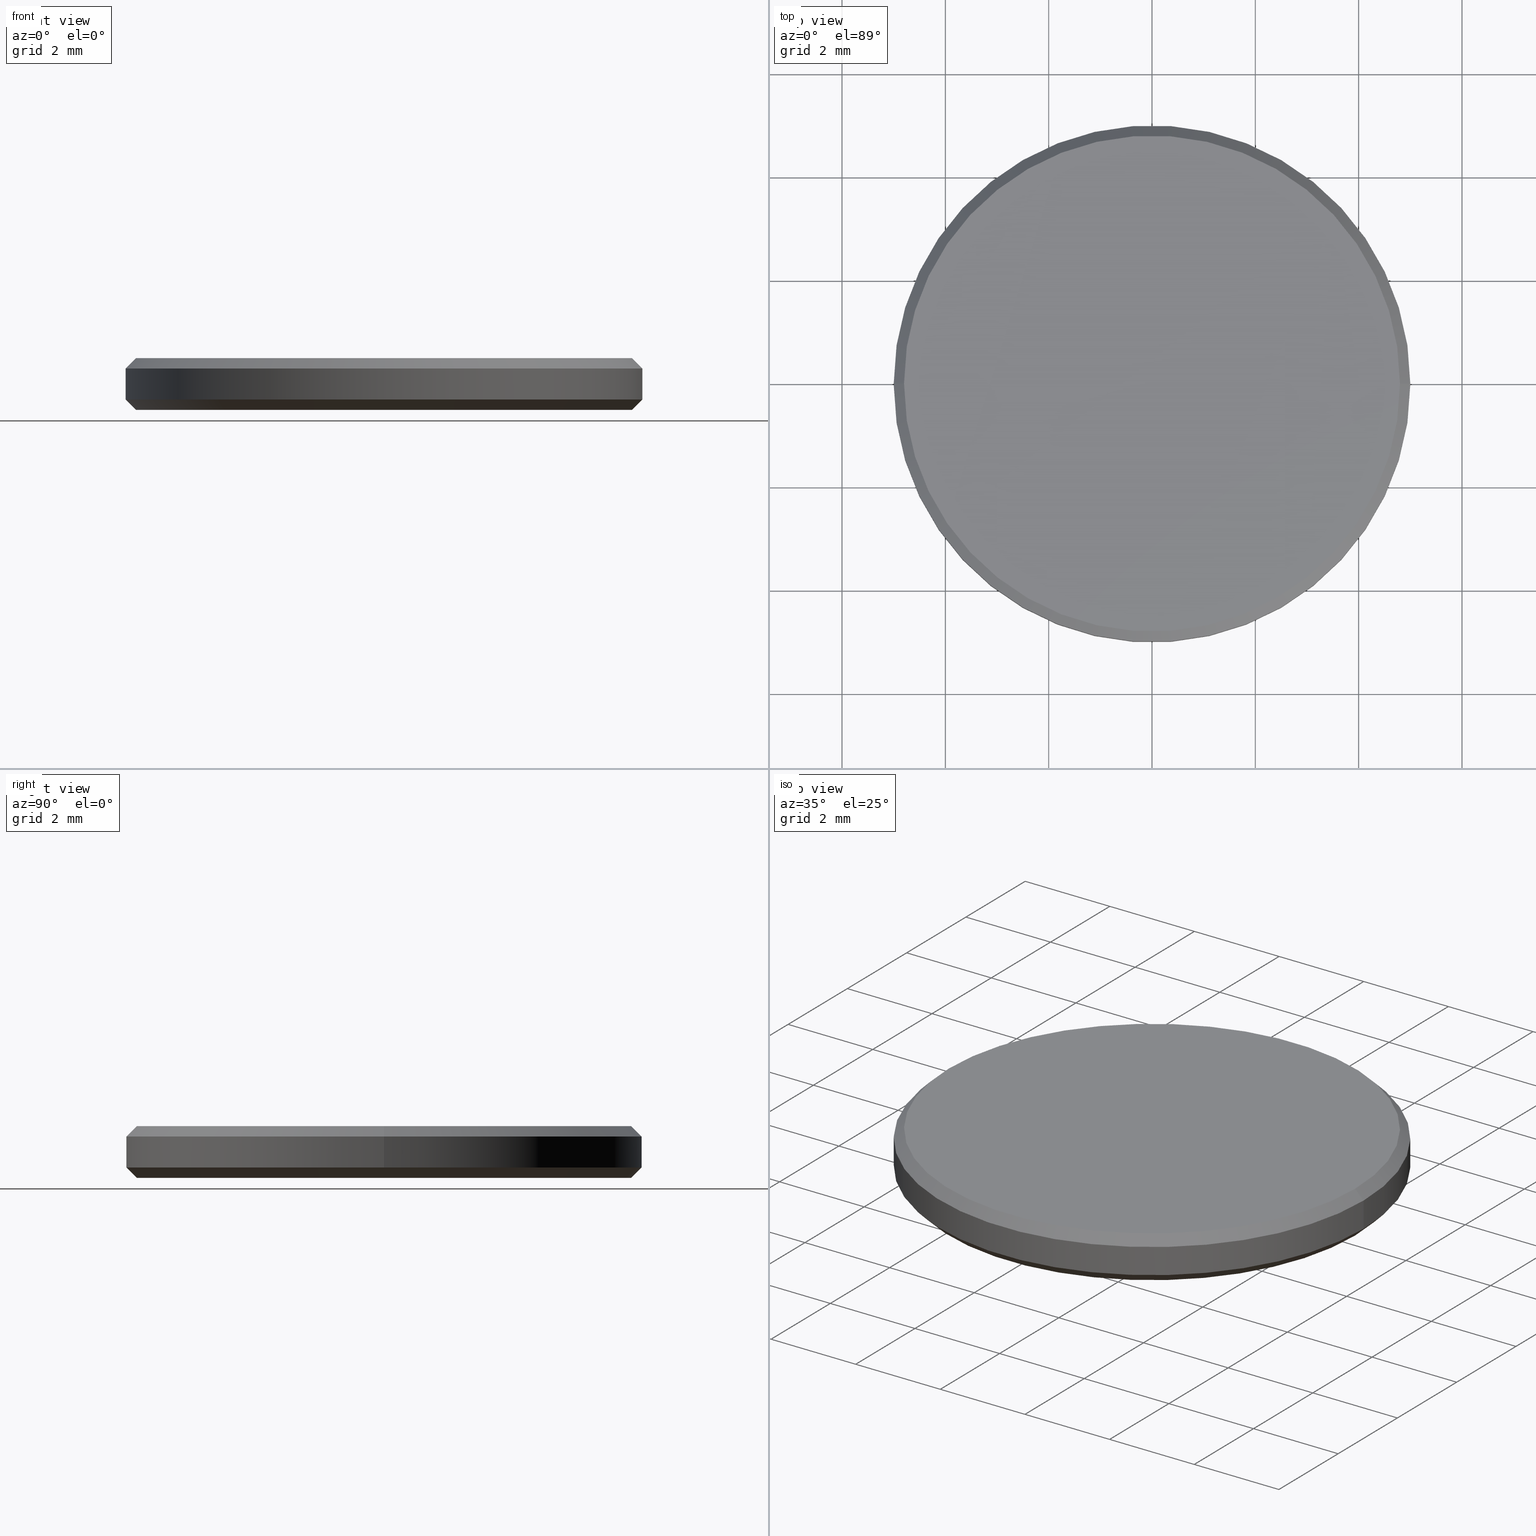
[diagram: canonical four-view strip — front | top / right | iso, engineering-drawing reading convention]
A machine part, canonical four-view strip (front | top / right | iso — engineering-drawing reading convention). The complete STEP part file that produces these views, byte-faithful:
ISO-10303-21;
HEADER;
FILE_DESCRIPTION (( 'STEP AP214' ),
    '1' );
FILE_NAME ('GNIF-070-4280-D10.STEP',
    '2024-07-19T14:41:36',
    ( '' ),
    ( '' ),
    'SwSTEP 2.0',
    'SolidWorks 2022',
    '' );
FILE_SCHEMA (( 'AUTOMOTIVE_DESIGN' ));
ENDSEC;

DATA;
#1 = ORIENTED_EDGE ( 'NONE', *, *, #38, .F. ) ;
#2 = PRODUCT_DEFINITION_FORMATION_WITH_SPECIFIED_SOURCE ( '�κ�', '', #13, .NOT_KNOWN. ) ;
#3 = DIRECTION ( 'NONE',  ( 1.000000000000000000, 0.000000000000000000, 0.000000000000000000 ) ) ;
#4 = AXIS2_PLACEMENT_3D ( 'NONE', #93, #124, #127 ) ;
#5 = PRODUCT_DEFINITION ( 'δ֪', '', #2, #116 ) ;
#6 = DIRECTION ( 'NONE',  ( 0.000000000000000000, 0.000000000000000000, 1.000000000000000000 ) ) ;
#7 = EDGE_LOOP ( 'NONE', ( #107, #101 ) ) ;
#8 = PLANE ( 'NONE',  #207 ) ;
#9 = EDGE_LOOP ( 'NONE', ( #211, #41, #50, #43 ) ) ;
#10 = APPLICATION_PROTOCOL_DEFINITION ( 'draft international standard', 'automotive_design', 1998, #176 ) ;
#11 = VECTOR ( 'NONE', #219, 1000.000000000000000 ) ;
#12 = PRESENTATION_LAYER_ASSIGNMENT (  '', '', ( #49 ) ) ;
#13 = PRODUCT ( 'GNIF-070-4280-D10', 'GNIF-070-4280-D10', '', ( #158 ) ) ;
#14 = ADVANCED_FACE ( 'NONE', ( #15 ), #109, .T. ) ;
#15 = FACE_OUTER_BOUND ( 'NONE', #187, .T. ) ;
#16 = DIRECTION ( 'NONE',  ( -1.000000000000000000, 0.000000000000000000, 0.000000000000000000 ) ) ;
#17 = CONICAL_SURFACE ( 'NONE', #154, 4.800000000000002487, 0.7853981633974461696 ) ;
#18 = CARTESIAN_POINT ( 'NONE',  ( 0.000000000000000000, 0.000000000000000000, 0.1999999999999996503 ) ) ;
#19 = CARTESIAN_POINT ( 'NONE',  ( 4.799999999999999822, 0.000000000000000000, 0.000000000000000000 ) ) ;
#20 = EDGE_CURVE ( 'NONE', #216, #51, #139, .T. ) ;
#21 = CARTESIAN_POINT ( 'NONE',  ( 0.000000000000000000, 0.000000000000000000, 1.000000000000000000 ) ) ;
#22 = CARTESIAN_POINT ( 'NONE',  ( 0.000000000000000000, 0.000000000000000000, 1.000000000000000000 ) ) ;
#23 = SURFACE_STYLE_USAGE ( .BOTH. , #27 ) ;
#24 = COLOUR_RGB ( '',1.000000000000000000, 1.000000000000000000, 1.000000000000000000 ) ;
#25 = AXIS2_PLACEMENT_3D ( 'NONE', #210, #94, #149 ) ;
#26 = ORIENTED_EDGE ( 'NONE', *, *, #61, .T. ) ;
#27 = SURFACE_SIDE_STYLE ('',( #167 ) ) ;
#28 =( LENGTH_UNIT ( ) NAMED_UNIT ( * ) SI_UNIT ( .MILLI., .METRE. ) );
#29 = AXIS2_PLACEMENT_3D ( 'NONE', #145, #95, #220 ) ;
#30 = UNCERTAINTY_MEASURE_WITH_UNIT (LENGTH_MEASURE( 1.000000000000000082E-05 ), #28, 'distance_accuracy_value', 'NONE');
#31 = DIRECTION ( 'NONE',  ( 0.000000000000000000, 0.000000000000000000, 1.000000000000000000 ) ) ;
#32 = DIRECTION ( 'NONE',  ( 1.000000000000000000, 0.000000000000000000, 0.000000000000000000 ) ) ;
#33 = AXIS2_PLACEMENT_3D ( 'NONE', #181, #237, #16 ) ;
#34 = CARTESIAN_POINT ( 'NONE',  ( 0.000000000000000000, 0.000000000000000000, 0.1999999999999996503 ) ) ;
#35 = CONICAL_SURFACE ( 'NONE', #174, 5.000000000000000000, 0.7853981633974503884 ) ;
#36 = ORIENTED_EDGE ( 'NONE', *, *, #47, .T. ) ;
#37 = FACE_OUTER_BOUND ( 'NONE', #141, .T. ) ;
#38 = EDGE_CURVE ( 'NONE', #129, #235, #196, .T. ) ;
#39 = CARTESIAN_POINT ( 'NONE',  ( 5.000000000000000000, 6.123233995736766282E-16, 0.8000000000000012657 ) ) ;
#40 = CYLINDRICAL_SURFACE ( 'NONE', #73, 5.000000000000000000 ) ;
#41 = ORIENTED_EDGE ( 'NONE', *, *, #194, .F. ) ;
#42 = DIRECTION ( 'NONE',  ( 1.000000000000000000, 0.000000000000000000, 0.000000000000000000 ) ) ;
#43 = ORIENTED_EDGE ( 'NONE', *, *, #82, .F. ) ;
#44 = EDGE_CURVE ( 'NONE', #235, #84, #153, .T. ) ;
#45 = AXIS2_PLACEMENT_3D ( 'NONE', #68, #103, #32 ) ;
#46 = FACE_OUTER_BOUND ( 'NONE', #9, .T. ) ;
#47 = EDGE_CURVE ( 'NONE', #129, #191, #117, .T. ) ;
#48 = DIRECTION ( 'NONE',  ( 0.7071067811865460184, 8.659560562354913137E-17, -0.7071067811865489050 ) ) ;
#49 = STYLED_ITEM ( 'NONE', ( #189 ), #214 ) ;
#50 = ORIENTED_EDGE ( 'NONE', *, *, #193, .T. ) ;
#51 = VERTEX_POINT ( 'NONE', #165 ) ;
#52 = CLOSED_SHELL ( 'NONE', ( #66, #112, #14, #236, #108, #123, #217, #85 ) ) ;
#53 = ADVANCED_BREP_SHAPE_REPRESENTATION ( 'GNIF-070-4280-D10', ( #214, #180 ), #213 ) ;
#54 = CONICAL_SURFACE ( 'NONE', #177, 4.800000000000002487, 0.7853981633974461696 ) ;
#55 = LINE ( 'NONE', #169, #96 ) ;
#56 = CARTESIAN_POINT ( 'NONE',  ( 0.000000000000000000, 0.000000000000000000, 0.000000000000000000 ) ) ;
#57 = ORIENTED_EDGE ( 'NONE', *, *, #61, .F. ) ;
#58 = EDGE_LOOP ( 'NONE', ( #71, #128, #175, #150 ) ) ;
#59 = CARTESIAN_POINT ( 'NONE',  ( 0.000000000000000000, 0.000000000000000000, 0.000000000000000000 ) ) ;
#60 = DIRECTION ( 'NONE',  ( 1.000000000000000000, 0.000000000000000000, 0.000000000000000000 ) ) ;
#61 = EDGE_CURVE ( 'NONE', #51, #216, #233, .T. ) ;
#62 = LINE ( 'NONE', #157, #162 ) ;
#63 = CARTESIAN_POINT ( 'NONE',  ( 0.000000000000000000, 0.000000000000000000, 0.000000000000000000 ) ) ;
#64 = SHAPE_DEFINITION_REPRESENTATION ( #178, #53 ) ;
#65 = CONICAL_SURFACE ( 'NONE', #198, 5.000000000000000000, 0.7853981633974503884 ) ;
#66 = ADVANCED_FACE ( 'NONE', ( #199 ), #65, .T. ) ;
#67 = SURFACE_STYLE_USAGE ( .BOTH. , #137 ) ;
#68 = CARTESIAN_POINT ( 'NONE',  ( 0.000000000000000000, 0.000000000000000000, 0.1999999999999996503 ) ) ;
#69 = LINE ( 'NONE', #218, #131 ) ;
#70 = EDGE_LOOP ( 'NONE', ( #57, #146, #136, #222 ) ) ;
#71 = ORIENTED_EDGE ( 'NONE', *, *, #240, .F. ) ;
#72 = APPLICATION_CONTEXT ( 'automotive_design' ) ;
#73 = AXIS2_PLACEMENT_3D ( 'NONE', #203, #202, #188 ) ;
#74 = ORIENTED_EDGE ( 'NONE', *, *, #209, .T. ) ;
#75 = DIRECTION ( 'NONE',  ( -0.7071067811865460184, 0.000000000000000000, -0.7071067811865489050 ) ) ;
#76 = AXIS2_PLACEMENT_3D ( 'NONE', #100, #229, #60 ) ;
#77 = CARTESIAN_POINT ( 'NONE',  ( -4.800000000000002487, 0.000000000000000000, 1.000000000000000000 ) ) ;
#78 = DIRECTION ( 'NONE',  ( 0.000000000000000000, 0.000000000000000000, -1.000000000000000000 ) ) ;
#79 = DIRECTION ( 'NONE',  ( -1.000000000000000000, 0.000000000000000000, 0.000000000000000000 ) ) ;
#80 = FACE_OUTER_BOUND ( 'NONE', #144, .T. ) ;
#81 = CARTESIAN_POINT ( 'NONE',  ( 0.000000000000000000, 0.000000000000000000, 1.000000000000000000 ) ) ;
#82 = EDGE_CURVE ( 'NONE', #84, #235, #215, .T. ) ;
#83 = DIRECTION ( 'NONE',  ( 1.000000000000000000, 0.000000000000000000, -0.000000000000000000 ) ) ;
#84 = VERTEX_POINT ( 'NONE', #143 ) ;
#85 = ADVANCED_FACE ( 'NONE', ( #46 ), #35, .T. ) ;
#86 = SURFACE_STYLE_FILL_AREA ( #160 ) ;
#87 = EDGE_CURVE ( 'NONE', #51, #129, #69, .T. ) ;
#88 = AXIS2_PLACEMENT_3D ( 'NONE', #18, #184, #148 ) ;
#89 = FILL_AREA_STYLE_COLOUR ( '', #24 ) ;
#90 = UNCERTAINTY_MEASURE_WITH_UNIT (LENGTH_MEASURE( 1.000000000000000082E-05 ), #225, 'distance_accuracy_value', 'NONE');
#91 = DIRECTION ( 'NONE',  ( 1.000000000000000000, 0.000000000000000000, 0.000000000000000000 ) ) ;
#92 = CARTESIAN_POINT ( 'NONE',  ( 0.000000000000000000, 0.000000000000000000, 1.000000000000000000 ) ) ;
#93 = CARTESIAN_POINT ( 'NONE',  ( 0.000000000000000000, 0.000000000000000000, 0.8000000000000012657 ) ) ;
#94 = DIRECTION ( 'NONE',  ( 0.000000000000000000, 0.000000000000000000, -1.000000000000000000 ) ) ;
#95 = DIRECTION ( 'NONE',  ( 0.000000000000000000, 0.000000000000000000, 1.000000000000000000 ) ) ;
#96 = VECTOR ( 'NONE', #75, 1000.000000000000114 ) ;
#97 = PRODUCT_RELATED_PRODUCT_CATEGORY ( 'part', '', ( #13 ) ) ;
#98 = CARTESIAN_POINT ( 'NONE',  ( 5.000000000000000000, 0.000000000000000000, 0.1999999999999996503 ) ) ;
#99 =( NAMED_UNIT ( * ) PLANE_ANGLE_UNIT ( ) SI_UNIT ( $, .RADIAN. ) );
#100 = CARTESIAN_POINT ( 'NONE',  ( 0.000000000000000000, 0.000000000000000000, 0.000000000000000000 ) ) ;
#101 = ORIENTED_EDGE ( 'NONE', *, *, #240, .T. ) ;
#102 = DIRECTION ( 'NONE',  ( -0.000000000000000000, -0.000000000000000000, -1.000000000000000000 ) ) ;
#103 = DIRECTION ( 'NONE',  ( -0.000000000000000000, -0.000000000000000000, 1.000000000000000000 ) ) ;
#104 = EDGE_CURVE ( 'NONE', #191, #84, #197, .T. ) ;
#105 = CARTESIAN_POINT ( 'NONE',  ( 0.000000000000000000, 0.000000000000000000, 0.1999999999999996503 ) ) ;
#106 = AXIS2_PLACEMENT_3D ( 'NONE', #92, #31, #91 ) ;
#107 = ORIENTED_EDGE ( 'NONE', *, *, #194, .T. ) ;
#108 = ADVANCED_FACE ( 'NONE', ( #37 ), #170, .T. ) ;
#109 = CYLINDRICAL_SURFACE ( 'NONE', #33, 5.000000000000000000 ) ;
#110 = EDGE_LOOP ( 'NONE', ( #200, #164, #186, #221 ) ) ;
#111 = DIRECTION ( 'NONE',  ( -0.000000000000000000, -0.000000000000000000, -1.000000000000000000 ) ) ;
#112 = ADVANCED_FACE ( 'NONE', ( #135 ), #54, .T. ) ;
#113 = ORIENTED_EDGE ( 'NONE', *, *, #38, .T. ) ;
#114 = CARTESIAN_POINT ( 'NONE',  ( 5.000000000000000000, 6.123233995736766282E-16, 0.1999999999999996503 ) ) ;
#115 = CARTESIAN_POINT ( 'NONE',  ( -4.799999999999999822, 6.000769315822029754E-16, 0.000000000000000000 ) ) ;
#116 = PRODUCT_DEFINITION_CONTEXT ( 'detailed design', #176, 'design' ) ;
#117 = CIRCLE ( 'NONE', #4, 5.000000000000000000 ) ;
#118 =( GEOMETRIC_REPRESENTATION_CONTEXT ( 3 ) GLOBAL_UNCERTAINTY_ASSIGNED_CONTEXT ( ( #121 ) ) GLOBAL_UNIT_ASSIGNED_CONTEXT ( ( #156, #99, #227 ) ) REPRESENTATION_CONTEXT ( 'NONE', 'WORKASPACE' ) );
#119 = DIRECTION ( 'NONE',  ( 0.7071067811865490160, 0.000000000000000000, 0.7071067811865459074 ) ) ;
#120 = CIRCLE ( 'NONE', #76, 4.799999999999999822 ) ;
#121 = UNCERTAINTY_MEASURE_WITH_UNIT (LENGTH_MEASURE( 1.000000000000000082E-05 ), #156, 'distance_accuracy_value', 'NONE');
#122 = ORIENTED_EDGE ( 'NONE', *, *, #82, .T. ) ;
#123 = ADVANCED_FACE ( 'NONE', ( #226 ), #8, .F. ) ;
#124 = DIRECTION ( 'NONE',  ( 0.000000000000000000, 0.000000000000000000, -1.000000000000000000 ) ) ;
#125 = CIRCLE ( 'NONE', #223, 4.799999999999999822 ) ;
#126 = MECHANICAL_DESIGN_GEOMETRIC_PRESENTATION_REPRESENTATION (  '', ( #49 ), #118 ) ;
#127 = DIRECTION ( 'NONE',  ( 1.000000000000000000, 0.000000000000000000, 0.000000000000000000 ) ) ;
#128 = ORIENTED_EDGE ( 'NONE', *, *, #185, .T. ) ;
#129 = VERTEX_POINT ( 'NONE', #39 ) ;
#130 = DIRECTION ( 'NONE',  ( 0.000000000000000000, 0.000000000000000000, -1.000000000000000000 ) ) ;
#131 = VECTOR ( 'NONE', #48, 1000.000000000000114 ) ;
#132 = ORIENTED_EDGE ( 'NONE', *, *, #104, .F. ) ;
#133 =( NAMED_UNIT ( * ) PLANE_ANGLE_UNIT ( ) SI_UNIT ( $, .RADIAN. ) );
#134 = DIRECTION ( 'NONE',  ( 0.000000000000000000, 0.000000000000000000, 1.000000000000000000 ) ) ;
#135 = FACE_OUTER_BOUND ( 'NONE', #70, .T. ) ;
#136 = ORIENTED_EDGE ( 'NONE', *, *, #209, .F. ) ;
#137 = SURFACE_SIDE_STYLE ('',( #86 ) ) ;
#138 = DIRECTION ( 'NONE',  ( 0.000000000000000000, 0.000000000000000000, 1.000000000000000000 ) ) ;
#139 = CIRCLE ( 'NONE', #106, 4.800000000000002487 ) ;
#140 = LINE ( 'NONE', #98, #192 ) ;
#141 = EDGE_LOOP ( 'NONE', ( #201, #26 ) ) ;
#142 = MECHANICAL_DESIGN_GEOMETRIC_PRESENTATION_REPRESENTATION (  '', ( #182 ), #152 ) ;
#143 = CARTESIAN_POINT ( 'NONE',  ( -5.000000000000000000, 0.000000000000000000, 0.1999999999999996503 ) ) ;
#144 = EDGE_LOOP ( 'NONE', ( #1, #36, #151, #122 ) ) ;
#145 = CARTESIAN_POINT ( 'NONE',  ( 0.000000000000000000, 0.000000000000000000, 1.000000000000000000 ) ) ;
#146 = ORIENTED_EDGE ( 'NONE', *, *, #87, .T. ) ;
#147 = VERTEX_POINT ( 'NONE', #115 ) ;
#148 = DIRECTION ( 'NONE',  ( 1.000000000000000000, 0.000000000000000000, 0.000000000000000000 ) ) ;
#149 = DIRECTION ( 'NONE',  ( 1.000000000000000000, 0.000000000000000000, 0.000000000000000000 ) ) ;
#150 = ORIENTED_EDGE ( 'NONE', *, *, #193, .F. ) ;
#151 = ORIENTED_EDGE ( 'NONE', *, *, #104, .T. ) ;
#152 =( GEOMETRIC_REPRESENTATION_CONTEXT ( 3 ) GLOBAL_UNCERTAINTY_ASSIGNED_CONTEXT ( ( #30 ) ) GLOBAL_UNIT_ASSIGNED_CONTEXT ( ( #28, #195, #230 ) ) REPRESENTATION_CONTEXT ( 'NONE', 'WORKASPACE' ) );
#153 = CIRCLE ( 'NONE', #88, 5.000000000000000000 ) ;
#154 = AXIS2_PLACEMENT_3D ( 'NONE', #21, #130, #79 ) ;
#155 = DIRECTION ( 'NONE',  ( -1.000000000000000000, 0.000000000000000000, 0.000000000000000000 ) ) ;
#156 =( LENGTH_UNIT ( ) NAMED_UNIT ( * ) SI_UNIT ( .MILLI., .METRE. ) );
#157 = CARTESIAN_POINT ( 'NONE',  ( -5.000000000000000000, 6.123233995736765296E-16, 0.1999999999999996503 ) ) ;
#158 = PRODUCT_CONTEXT ( 'NONE', #72, 'mechanical' ) ;
#159 = CIRCLE ( 'NONE', #25, 5.000000000000000000 ) ;
#160 = FILL_AREA_STYLE ('',( #89 ) ) ;
#161 = DIRECTION ( 'NONE',  ( 1.000000000000000000, 0.000000000000000000, 0.000000000000000000 ) ) ;
#162 = VECTOR ( 'NONE', #208, 1000.000000000000000 ) ;
#163 = CARTESIAN_POINT ( 'NONE',  ( 5.000000000000000000, 6.123233995736766282E-16, 1.000000000000000000 ) ) ;
#164 = ORIENTED_EDGE ( 'NONE', *, *, #20, .F. ) ;
#165 = CARTESIAN_POINT ( 'NONE',  ( 4.800000000000002487, 6.000769315822031726E-16, 1.000000000000000000 ) ) ;
#166 =( NAMED_UNIT ( * ) SI_UNIT ( $, .STERADIAN. ) SOLID_ANGLE_UNIT ( ) );
#167 = SURFACE_STYLE_FILL_AREA ( #239 ) ;
#168 = DIRECTION ( 'NONE',  ( -0.000000000000000000, -0.000000000000000000, 1.000000000000000000 ) ) ;
#169 = CARTESIAN_POINT ( 'NONE',  ( -4.800000000000002487, 0.000000000000000000, 1.000000000000000000 ) ) ;
#170 = PLANE ( 'NONE',  #224 ) ;
#171 = VECTOR ( 'NONE', #102, 1000.000000000000000 ) ;
#172 = PRESENTATION_STYLE_ASSIGNMENT (( #67 ) ) ;
#173 = CARTESIAN_POINT ( 'NONE',  ( -5.000000000000000000, 0.000000000000000000, 1.000000000000000000 ) ) ;
#174 = AXIS2_PLACEMENT_3D ( 'NONE', #105, #179, #234 ) ;
#175 = ORIENTED_EDGE ( 'NONE', *, *, #44, .F. ) ;
#176 = APPLICATION_CONTEXT ( 'automotive_design' ) ;
#177 = AXIS2_PLACEMENT_3D ( 'NONE', #81, #78, #155 ) ;
#178 = PRODUCT_DEFINITION_SHAPE ( 'NONE', 'NONE',  #5 ) ;
#179 = DIRECTION ( 'NONE',  ( -0.000000000000000000, -0.000000000000000000, 1.000000000000000000 ) ) ;
#180 = AXIS2_PLACEMENT_3D ( 'NONE', #63, #138, #42 ) ;
#181 = CARTESIAN_POINT ( 'NONE',  ( 0.000000000000000000, 0.000000000000000000, 1.000000000000000000 ) ) ;
#182 = STYLED_ITEM ( 'NONE', ( #172 ), #53 ) ;
#183 = ORIENTED_EDGE ( 'NONE', *, *, #44, .T. ) ;
#184 = DIRECTION ( 'NONE',  ( -0.000000000000000000, -0.000000000000000000, 1.000000000000000000 ) ) ;
#185 = EDGE_CURVE ( 'NONE', #147, #84, #62, .T. ) ;
#186 = ORIENTED_EDGE ( 'NONE', *, *, #228, .T. ) ;
#187 = EDGE_LOOP ( 'NONE', ( #74, #113, #183, #132 ) ) ;
#188 = DIRECTION ( 'NONE',  ( -1.000000000000000000, 0.000000000000000000, 0.000000000000000000 ) ) ;
#189 = PRESENTATION_STYLE_ASSIGNMENT (( #23 ) ) ;
#190 = CARTESIAN_POINT ( 'NONE',  ( -5.000000000000000000, 0.000000000000000000, 0.8000000000000012657 ) ) ;
#191 = VERTEX_POINT ( 'NONE', #190 ) ;
#192 = VECTOR ( 'NONE', #119, 1000.000000000000000 ) ;
#193 = EDGE_CURVE ( 'NONE', #238, #235, #140, .T. ) ;
#194 = EDGE_CURVE ( 'NONE', #238, #147, #120, .T. ) ;
#195 =( NAMED_UNIT ( * ) PLANE_ANGLE_UNIT ( ) SI_UNIT ( $, .RADIAN. ) );
#196 = LINE ( 'NONE', #163, #11 ) ;
#197 = LINE ( 'NONE', #173, #171 ) ;
#198 = AXIS2_PLACEMENT_3D ( 'NONE', #34, #168, #161 ) ;
#199 = FACE_OUTER_BOUND ( 'NONE', #58, .T. ) ;
#200 = ORIENTED_EDGE ( 'NONE', *, *, #87, .F. ) ;
#201 = ORIENTED_EDGE ( 'NONE', *, *, #20, .T. ) ;
#202 = DIRECTION ( 'NONE',  ( -0.000000000000000000, -0.000000000000000000, -1.000000000000000000 ) ) ;
#203 = CARTESIAN_POINT ( 'NONE',  ( 0.000000000000000000, 0.000000000000000000, 1.000000000000000000 ) ) ;
#204 = FILL_AREA_STYLE_COLOUR ( '', #232 ) ;
#205 = DIRECTION ( 'NONE',  ( 1.000000000000000000, 0.000000000000000000, -0.000000000000000000 ) ) ;
#206 = FACE_OUTER_BOUND ( 'NONE', #110, .T. ) ;
#207 = AXIS2_PLACEMENT_3D ( 'NONE', #56, #134, #83 ) ;
#208 = DIRECTION ( 'NONE',  ( -0.7071067811865490160, 8.659560562354950115E-17, 0.7071067811865459074 ) ) ;
#209 = EDGE_CURVE ( 'NONE', #191, #129, #159, .T. ) ;
#210 = CARTESIAN_POINT ( 'NONE',  ( 0.000000000000000000, 0.000000000000000000, 0.8000000000000012657 ) ) ;
#211 = ORIENTED_EDGE ( 'NONE', *, *, #185, .F. ) ;
#212 = APPLICATION_PROTOCOL_DEFINITION ( 'draft international standard', 'automotive_design', 1998, #72 ) ;
#213 =( GEOMETRIC_REPRESENTATION_CONTEXT ( 3 ) GLOBAL_UNCERTAINTY_ASSIGNED_CONTEXT ( ( #90 ) ) GLOBAL_UNIT_ASSIGNED_CONTEXT ( ( #225, #133, #166 ) ) REPRESENTATION_CONTEXT ( 'NONE', 'WORKASPACE' ) );
#214 = MANIFOLD_SOLID_BREP ( '����1', #52 ) ;
#215 = CIRCLE ( 'NONE', #45, 5.000000000000000000 ) ;
#216 = VERTEX_POINT ( 'NONE', #77 ) ;
#217 = ADVANCED_FACE ( 'NONE', ( #206 ), #17, .T. ) ;
#218 = CARTESIAN_POINT ( 'NONE',  ( 4.800000000000002487, 5.878304635907297169E-16, 1.000000000000000000 ) ) ;
#219 = DIRECTION ( 'NONE',  ( -0.000000000000000000, -0.000000000000000000, -1.000000000000000000 ) ) ;
#220 = DIRECTION ( 'NONE',  ( 1.000000000000000000, 0.000000000000000000, 0.000000000000000000 ) ) ;
#221 = ORIENTED_EDGE ( 'NONE', *, *, #47, .F. ) ;
#222 = ORIENTED_EDGE ( 'NONE', *, *, #228, .F. ) ;
#223 = AXIS2_PLACEMENT_3D ( 'NONE', #59, #111, #3 ) ;
#224 = AXIS2_PLACEMENT_3D ( 'NONE', #22, #6, #205 ) ;
#225 =( LENGTH_UNIT ( ) NAMED_UNIT ( * ) SI_UNIT ( .MILLI., .METRE. ) );
#226 = FACE_OUTER_BOUND ( 'NONE', #7, .T. ) ;
#227 =( NAMED_UNIT ( * ) SI_UNIT ( $, .STERADIAN. ) SOLID_ANGLE_UNIT ( ) );
#228 = EDGE_CURVE ( 'NONE', #216, #191, #55, .T. ) ;
#229 = DIRECTION ( 'NONE',  ( -0.000000000000000000, -0.000000000000000000, -1.000000000000000000 ) ) ;
#230 =( NAMED_UNIT ( * ) SI_UNIT ( $, .STERADIAN. ) SOLID_ANGLE_UNIT ( ) );
#231 = PRESENTATION_LAYER_ASSIGNMENT (  '', '', ( #182 ) ) ;
#232 = COLOUR_RGB ( '',1.000000000000000000, 1.000000000000000000, 1.000000000000000000 ) ;
#233 = CIRCLE ( 'NONE', #29, 4.800000000000002487 ) ;
#234 = DIRECTION ( 'NONE',  ( 1.000000000000000000, 0.000000000000000000, 0.000000000000000000 ) ) ;
#235 = VERTEX_POINT ( 'NONE', #114 ) ;
#236 = ADVANCED_FACE ( 'NONE', ( #80 ), #40, .T. ) ;
#237 = DIRECTION ( 'NONE',  ( -0.000000000000000000, -0.000000000000000000, -1.000000000000000000 ) ) ;
#238 = VERTEX_POINT ( 'NONE', #19 ) ;
#239 = FILL_AREA_STYLE ('',( #204 ) ) ;
#240 = EDGE_CURVE ( 'NONE', #147, #238, #125, .T. ) ;
ENDSEC;
END-ISO-10303-21;
